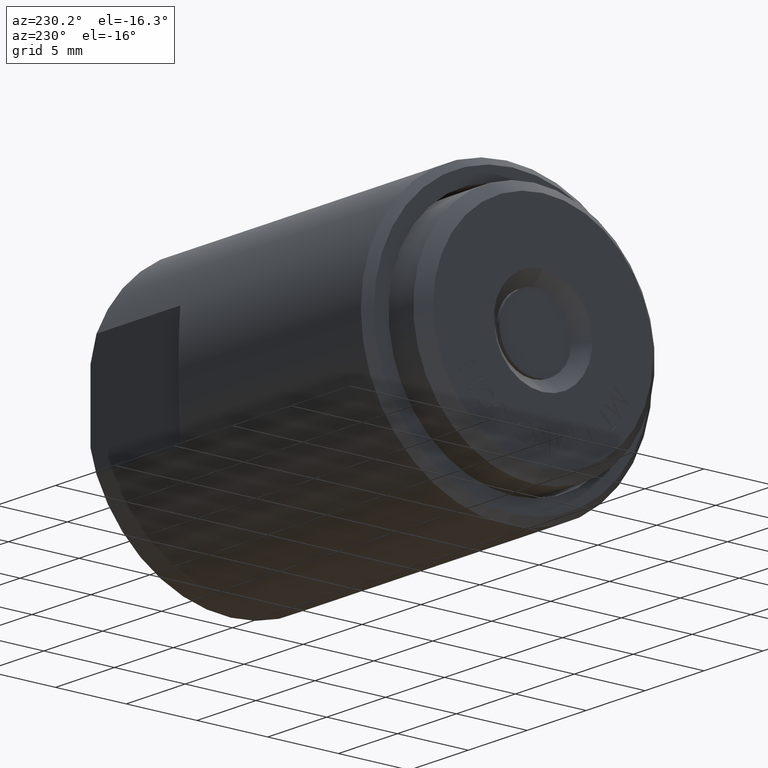
[diagram: clean part render]
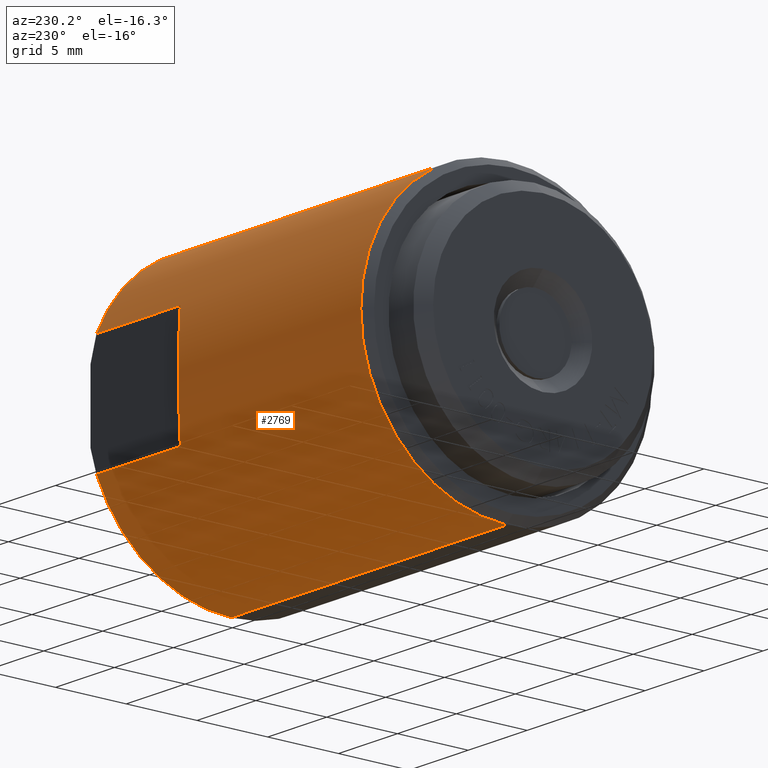
[diagram: same view with one face highlighted and labeled with its STEP entity id]
A machine part, auxiliary view. The second image highlights one B-rep face of the part: STEP entity #2769.
In plain terms, the highlighted cylindrical surface (partial cylindrical patch) has radius 10.306 mm, axis along (-1, -0, -0).
Its self-contained STEP definition (entity closure, byte-faithful):
#234 = CARTESIAN_POINT ( 'NONE',  ( -8.519950930240418632E-17, 0.3742499999999997495, 0.1567482057313580313 ) ) ;
#352 = CYLINDRICAL_SURFACE ( 'NONE', #7179, 0.4057499999999999440 ) ;
#369 = CARTESIAN_POINT ( 'NONE',  ( 0.7919999999999999263, 0.3742499999999999716, 0.1567482057313575317 ) ) ;
#391 = VECTOR ( 'NONE', #9200, 39.37007874015748143 ) ;
#407 = DIRECTION ( 'NONE',  ( -1.000000000000000000, -0.0000000000000000000, -0.0000000000000000000 ) ) ;
#633 =( BOUNDED_CURVE ( )  B_SPLINE_CURVE ( 3, ( #5714, #8256, #3292, #1685 ),
 .UNSPECIFIED., .F., .F. ) 
 B_SPLINE_CURVE_WITH_KNOTS ( ( 4, 4 ),
 ( 5.886549839540733409, 6.679820774818439055 ),
 .UNSPECIFIED. ) 
 CURVE ( )  GEOMETRIC_REPRESENTATION_ITEM ( )  RATIONAL_B_SPLINE_CURVE ( ( 1.000000000000000000, 0.9482439926062844471, 0.9482439926062844471, 1.000000000000000000 ) ) 
 REPRESENTATION_ITEM ( '' )  );
#637 = DIRECTION ( 'NONE',  ( 0.0000000000000000000, 0.0000000000000000000, 1.000000000000000000 ) ) ;
#676 = VERTEX_POINT ( 'NONE', #6243 ) ;
#693 = ORIENTED_EDGE ( 'NONE', *, *, #3965, .F. ) ;
#902 = DIRECTION ( 'NONE',  ( -1.000000000000000000, -0.0000000000000000000, -0.0000000000000000000 ) ) ;
#1015 = DIRECTION ( 'NONE',  ( -1.000000000000000000, -0.0000000000000000000, -0.0000000000000000000 ) ) ;
#1217 = VERTEX_POINT ( 'NONE', #2295 ) ;
#1444 = ORIENTED_EDGE ( 'NONE', *, *, #1883, .F. ) ;
#1685 = CARTESIAN_POINT ( 'NONE',  ( 0.5120000000000000107, 0.3742499999999999161, 0.1567482057313580035 ) ) ;
#1713 = EDGE_CURVE ( 'NONE', #1217, #3134, #9215, .T. ) ;
#1823 = EDGE_CURVE ( 'NONE', #8269, #5968, #5263, .T. ) ;
#1833 = CARTESIAN_POINT ( 'NONE',  ( 0.0000000000000000000, 4.969004387540385421E-17, -0.4057499999999999440 ) ) ;
#1837 = AXIS2_PLACEMENT_3D ( 'NONE', #4780, #10526, #3281 ) ;
#1883 = EDGE_CURVE ( 'NONE', #8269, #2562, #4277, .T. ) ;
#1893 = CARTESIAN_POINT ( 'NONE',  ( -0.1285000000000000031, 0.0000000000000000000, 0.4057499999999999440 ) ) ;
#1917 = CARTESIAN_POINT ( 'NONE',  ( 0.0000000000000000000, 0.0000000000000000000, 0.4057499999999999440 ) ) ;
#2115 = CARTESIAN_POINT ( 'NONE',  ( 0.7919999999999999263, 0.0000000000000000000, 0.4057499999999999440 ) ) ;
#2295 = CARTESIAN_POINT ( 'NONE',  ( 0.7919999999999999263, 4.969004387540385421E-17, -0.4057499999999999440 ) ) ;
#2562 = VERTEX_POINT ( 'NONE', #1893 ) ;
#2769 = ADVANCED_FACE ( 'NONE', ( #10183 ), #352, .T. ) ;
#3134 = VERTEX_POINT ( 'NONE', #5261 ) ;
#3229 = EDGE_CURVE ( 'NONE', #9109, #1217, #3473, .T. ) ;
#3235 = EDGE_CURVE ( 'NONE', #2562, #3134, #5730, .T. ) ;
#3281 = DIRECTION ( 'NONE',  ( 0.0000000000000000000, 0.0000000000000000000, 1.000000000000000000 ) ) ;
#3292 = CARTESIAN_POINT ( 'NONE',  ( 0.4694269005847954146, 0.4168230994152046232, 0.05510122111804070799 ) ) ;
#3473 = CIRCLE ( 'NONE', #5555, 0.4057499999999999440 ) ;
#3965 = EDGE_CURVE ( 'NONE', #6158, #5968, #5901, .T. ) ;
#4181 = ORIENTED_EDGE ( 'NONE', *, *, #6265, .F. ) ;
#4277 = LINE ( 'NONE', #1917, #6304 ) ;
#4604 = CARTESIAN_POINT ( 'NONE',  ( -0.1285000000000000031, 0.0000000000000000000, 0.0000000000000000000 ) ) ;
#4780 = CARTESIAN_POINT ( 'NONE',  ( 0.7919999999999999263, 0.0000000000000000000, 0.0000000000000000000 ) ) ;
#5051 = EDGE_LOOP ( 'NONE', ( #7255, #8561, #7395, #1444, #6259, #693, #4181, #7751 ) ) ;
#5109 = DIRECTION ( 'NONE',  ( -1.000000000000000000, -0.0000000000000000000, -0.0000000000000000000 ) ) ;
#5261 = CARTESIAN_POINT ( 'NONE',  ( -0.1285000000000000031, 4.969004387540385421E-17, -0.4057499999999999440 ) ) ;
#5263 = CIRCLE ( 'NONE', #1837, 0.4057499999999999440 ) ;
#5536 = EDGE_CURVE ( 'NONE', #9109, #676, #7685, .T. ) ;
#5555 = AXIS2_PLACEMENT_3D ( 'NONE', #7794, #407, #637 ) ;
#5714 = CARTESIAN_POINT ( 'NONE',  ( 0.5120000000000000107, 0.3742499999999999161, -0.1567482057313580313 ) ) ;
#5730 = CIRCLE ( 'NONE', #7291, 0.4057499999999999440 ) ;
#5901 = LINE ( 'NONE', #234, #391 ) ;
#5968 = VERTEX_POINT ( 'NONE', #369 ) ;
#6158 = VERTEX_POINT ( 'NONE', #8735 ) ;
#6173 = DIRECTION ( 'NONE',  ( 0.0000000000000000000, 0.0000000000000000000, 1.000000000000000000 ) ) ;
#6243 = CARTESIAN_POINT ( 'NONE',  ( 0.5120000000000000107, 0.3742499999999999161, -0.1567482057313580313 ) ) ;
#6259 = ORIENTED_EDGE ( 'NONE', *, *, #1823, .T. ) ;
#6265 = EDGE_CURVE ( 'NONE', #676, #6158, #633, .T. ) ;
#6304 = VECTOR ( 'NONE', #7583, 39.37007874015748143 ) ;
#6871 = DIRECTION ( 'NONE',  ( 0.0000000000000000000, 0.0000000000000000000, 1.000000000000000000 ) ) ;
#7157 = DIRECTION ( 'NONE',  ( -1.000000000000000000, -0.0000000000000000000, -0.0000000000000000000 ) ) ;
#7179 = AXIS2_PLACEMENT_3D ( 'NONE', #8398, #1015, #6871 ) ;
#7255 = ORIENTED_EDGE ( 'NONE', *, *, #3229, .T. ) ;
#7291 = AXIS2_PLACEMENT_3D ( 'NONE', #4604, #7157, #6173 ) ;
#7395 = ORIENTED_EDGE ( 'NONE', *, *, #3235, .F. ) ;
#7583 = DIRECTION ( 'NONE',  ( -1.000000000000000000, -0.0000000000000000000, -0.0000000000000000000 ) ) ;
#7679 = VECTOR ( 'NONE', #5109, 39.37007874015748143 ) ;
#7685 = LINE ( 'NONE', #10127, #10531 ) ;
#7751 = ORIENTED_EDGE ( 'NONE', *, *, #5536, .F. ) ;
#7794 = CARTESIAN_POINT ( 'NONE',  ( 0.7919999999999999263, 0.0000000000000000000, 0.0000000000000000000 ) ) ;
#8256 = CARTESIAN_POINT ( 'NONE',  ( 0.4694269005847954701, 0.4168230994152046232, -0.05510122111804077738 ) ) ;
#8269 = VERTEX_POINT ( 'NONE', #2115 ) ;
#8398 = CARTESIAN_POINT ( 'NONE',  ( 0.0000000000000000000, 0.0000000000000000000, 0.0000000000000000000 ) ) ;
#8561 = ORIENTED_EDGE ( 'NONE', *, *, #1713, .T. ) ;
#8735 = CARTESIAN_POINT ( 'NONE',  ( 0.5120000000000000107, 0.3742499999999999161, 0.1567482057313580035 ) ) ;
#9091 = CARTESIAN_POINT ( 'NONE',  ( 0.7919999999999999263, 0.3742499999999999716, -0.1567482057313575594 ) ) ;
#9109 = VERTEX_POINT ( 'NONE', #9091 ) ;
#9200 = DIRECTION ( 'NONE',  ( 1.000000000000000000, 0.0000000000000000000, 0.0000000000000000000 ) ) ;
#9215 = LINE ( 'NONE', #1833, #7679 ) ;
#10127 = CARTESIAN_POINT ( 'NONE',  ( -8.519950930240418632E-17, 0.3742499999999997495, -0.1567482057313580313 ) ) ;
#10183 = FACE_OUTER_BOUND ( 'NONE', #5051, .T. ) ;
#10526 = DIRECTION ( 'NONE',  ( -1.000000000000000000, -0.0000000000000000000, -0.0000000000000000000 ) ) ;
#10531 = VECTOR ( 'NONE', #902, 39.37007874015748143 ) ;